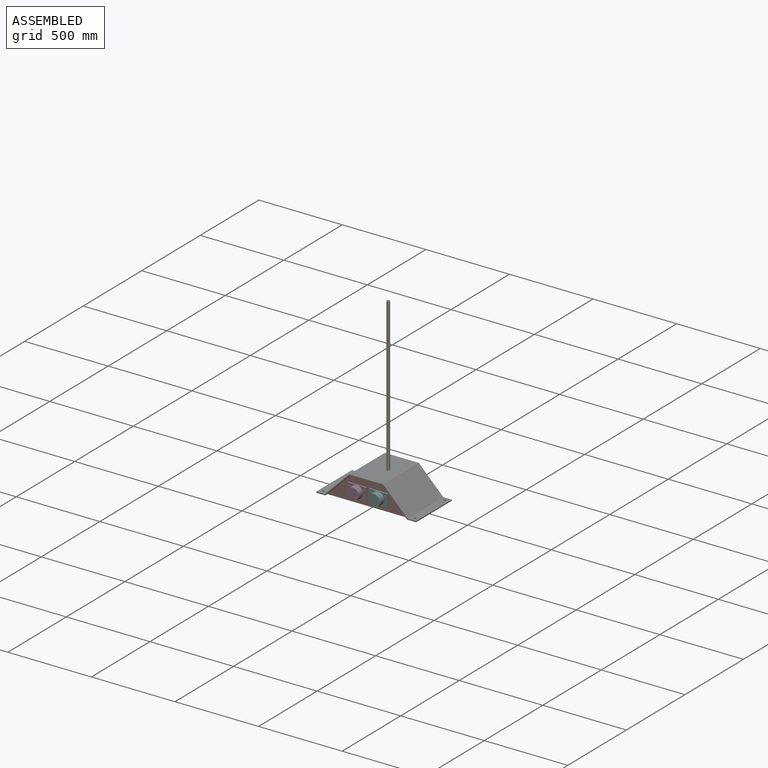
[diagram: assembled view]
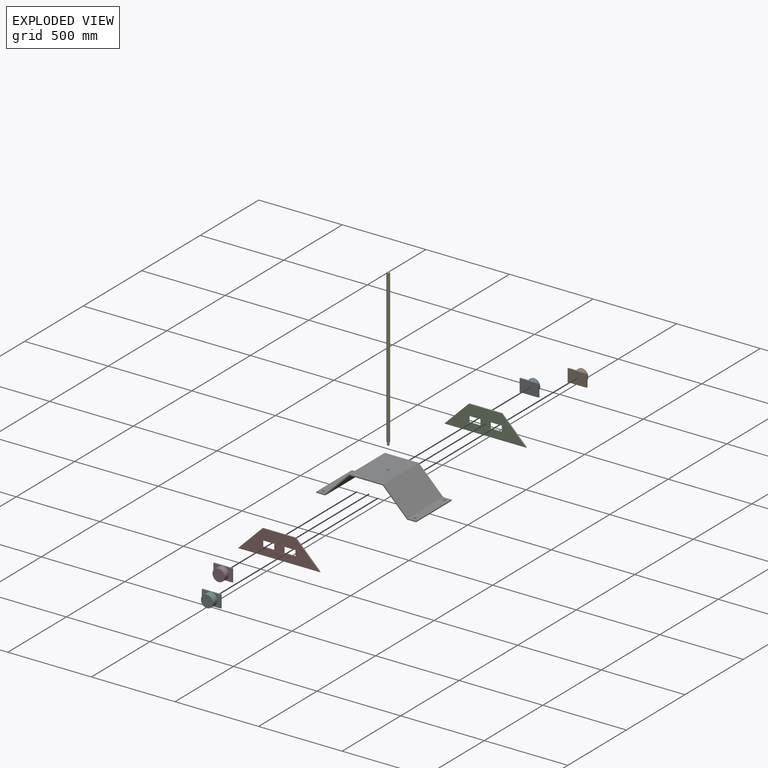
[diagram: exploded view]
GUIDED TOUR — MATED ASSEMBLY (Onshape document bef952115ae4e4e3dbd7dc41, AutoMate assembly bef952115ae4e4e3dbd7dc41_7c70753923f27d5a28662332_4866c18e5e2b8e146bc6869d_default)

This assembly has 8 components, labeled P0..P7 below (a component is one placed occurrence of a part; the same part can appear more than once), held together by 9 mates. A mate is a constraint between two components; its type names the relative motion it leaves free:
  FASTENED — locks the two components together rigidly (no relative motion),
  PLANAR — leaves sliding in the plane through the listed point (normal = the listed direction) and rotation about that normal free.
Axis/direction vectors are unit vectors and 'through' points are millimeter coordinates, both in the assembly's world frame.

MATES
  1. FASTENED "Fastened 4": P2 <-> P1, direction (0.000, 1.000, 0.000) through (22.22, 133.35, -65.02) mm
  2. FASTENED "Fastened 1": P5 <-> P7, direction (0.000, 1.000, 0.000) through (104.78, -133.35, -65.02) mm
  3. FASTENED "Fastened 3": P0 <-> P2, direction (0.000, -1.000, 0.000) through (-104.77, 133.35, -65.02) mm
  4. FASTENED "Fastened 2": P7 <-> P3, direction (0.000, -1.000, 0.000) through (-22.23, -133.35, -65.02) mm
  5. PLANAR "Planar 5": P4 <-> P6, direction (0.000, 0.000, -1.000) through (25.40, 0.00, 0.00) mm
  6. PLANAR "Planar 3": P2 <-> P6, direction (0.000, 0.000, 1.000) through (0.00, 130.17, -6.35) mm
  7. PLANAR "Planar 4": P2 <-> P6, direction (0.000, 1.000, 0.000) through (0.00, 133.35, -89.80) mm
  8. PLANAR "Planar 2": P7 <-> P6, direction (0.000, -1.000, 0.000) through (0.00, -133.35, -89.80) mm
  9. PLANAR "Planar 1": P7 <-> P6, direction (0.000, 0.000, 1.000) through (0.00, -130.17, -6.35) mm

ASSEMBLY ORDER
  1. P6 — the base component [order verified]
  2. P2 [order verified]
  3. P7 [order verified]
  4. P0 [order verified]
  5. P1 [order verified]
  6. P3 [order verified]
  7. P5 [order verified]
  8. P4 [order verified]
Order-tag legend:
  [order verified] — this step's position reverses a verified removal order: the component was checked to insert without passing through the ones already placed.

Of the 8 components, 6 carry the full construction recipe — the FeatureScript program that regenerates the part's solid from scratch; the rest are supplied as boundary geometry only.
Each toured component is shown spotlighted twice — in the assembled view, then in the exploded view, where a leader line traces a displaced component back to its assembled socket (saturated green if recipe-attached, orange if geometry-only; every other component desaturated gray) — followed by its recipe or geometry summary and the mates that hold it.
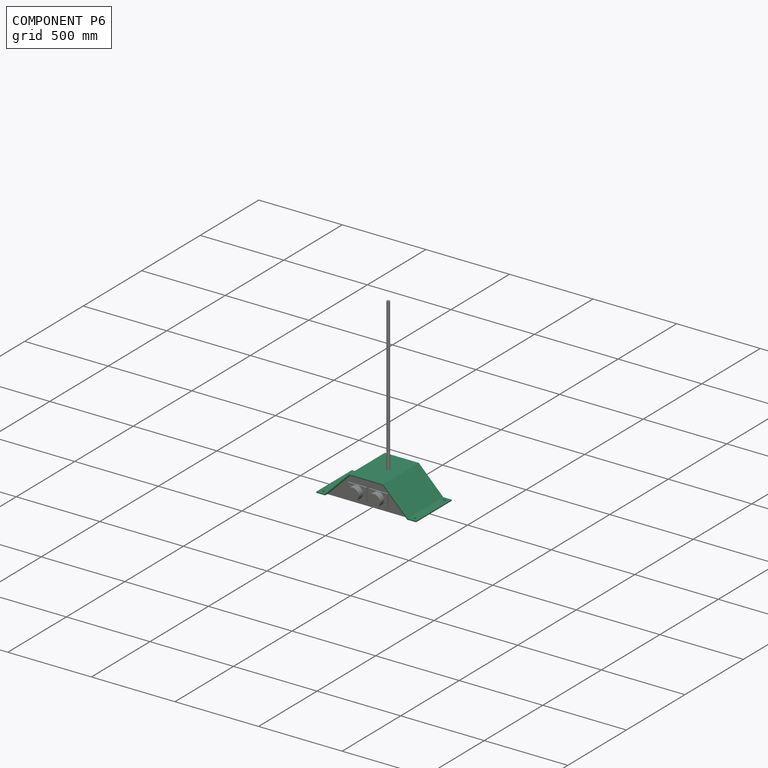
[diagram: component P6 — assembled]
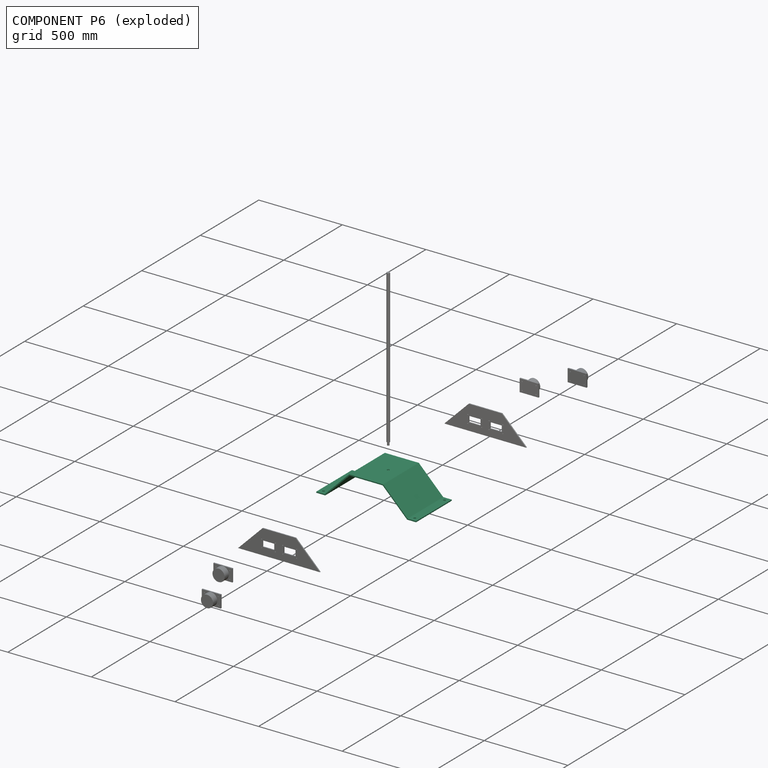
[diagram: component P6 — exploded]
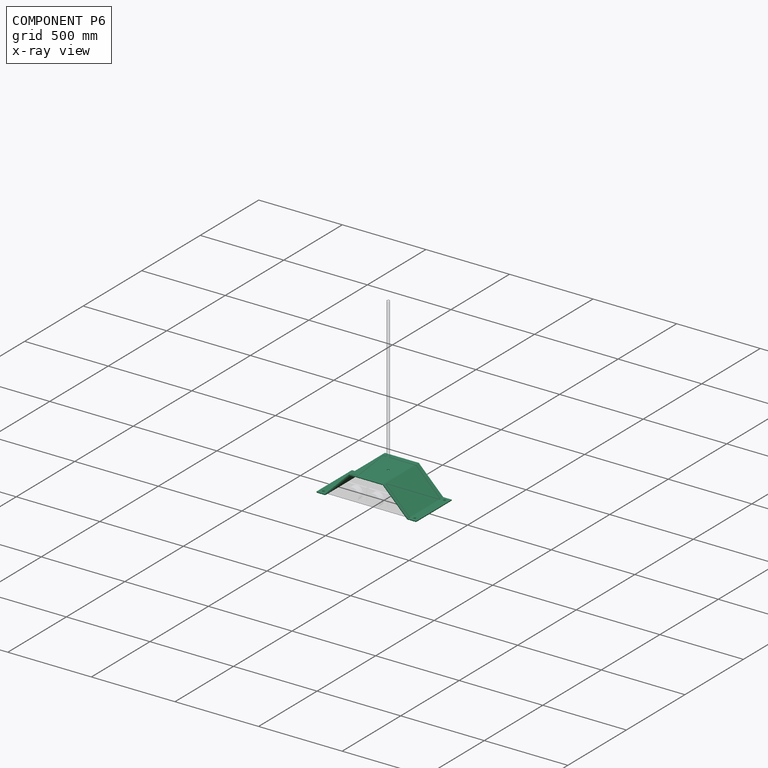
[diagram: component P6 — x-ray view]
COMPONENT P6 — recipe-attached (CADFS 00173243, mesh-verified: the recipe's output STEP matches this component's geometry to below the mesh-comparison resolution (tessellation chordal tolerance ~1.03 mm)).
Held by: PLANAR mate "Planar 5" to P4; PLANAR mate "Planar 3" to P2; PLANAR mate "Planar 4" to P2; PLANAR mate "Planar 2" to P7; PLANAR mate "Planar 1" to P7.
Construction recipe (FeatureScript — the CAD program that rebuilds this solid; sketch coordinates are in the units given by the * unit suffixes, e.g. mm):

FeatureScript 1511;
import(path : "onshape/std/geometry.fs", version : "1511.0");
import(path : "onshape/std/common.fs", version : "1511.0");
const mm = millimeter;
const VERTEX = EntityType.VERTEX;
const EDGE = EntityType.EDGE;
const FACE = EntityType.FACE;
const BODY = EntityType.BODY;
function v(x, y){return vector(x, y);}
function OD(order){return orderDisambiguation(order);}
function OSD(set){return originalSetDisambiguation(set);}
function TD(topology){return topologyDisambiguation(topology);}
function TDD(query){return trueDependencyDisambiguation(query);}
function sQuery(a, b, c) {return sketchEntityQuery(a, b, c);}

annotation { "Feature Type Name" : "Feature", "Feature Type Description" : "" }
export const myFeature = defineFeature(function(context is Context, id is Id, definition is map)
    precondition{}
    {
        {
            var Q0;
            Q0=qCreatedBy(makeId("Front.planeOp"),FACE);
            var sketch = newSketch(context, id + "F0", { "sketchPlane" : qUnion([Q0])});
            skLineSegment(sketch, "E0", {"start": v(-101.6, 0) * mm, "end": v(101.6, 0) * mm});
            skLineSegment(sketch, "E1", {"start": v(101.6, 0) * mm, "end": v(247.65, -146.05) * mm});
            skLineSegment(sketch, "E2", {"start": v(247.65, -146.05) * mm, "end": v(298.45, -146.05) * mm});
            skLineSegment(sketch, "E3", {"start": v(298.45, -146.05) * mm, "end": v(298.45, -152.4) * mm});
            skLineSegment(sketch, "E4", {"start": v(298.45, -152.4) * mm, "end": v(245.02, -152.4) * mm});
            skLineSegment(sketch, "E5", {"start": v(245.02, -152.4) * mm, "end": v(98.97, -6.35) * mm});
            skLineSegment(sketch, "E6", {"start": v(98.97, -6.35) * mm, "end": v(-98.97, -6.35) * mm});
            skLineSegment(sketch, "E7", {"start": v(-98.97, -6.35) * mm, "end": v(-245.02, -152.4) * mm});
            skLineSegment(sketch, "E8", {"start": v(-245.02, -152.4) * mm, "end": v(-298.45, -152.4) * mm});
            skLineSegment(sketch, "E9", {"start": v(-298.45, -152.4) * mm, "end": v(-298.45, -146.05) * mm});
            skLineSegment(sketch, "E10", {"start": v(-298.45, -146.05) * mm, "end": v(-247.65, -146.05) * mm});
            skLineSegment(sketch, "E11", {"start": v(-247.65, -146.05) * mm, "end": v(-101.6, 0) * mm});
            skSolve(sketch);
        }
        {
            var Q0;
            Q0 = qSketchRegion(id + "F0", true);
            extrude(context, id + "F1", {"entities" : qUnion([Q0]), "endBound" : BoundingType.SYMMETRIC, "depth" : 304.8 * mm});
        }
        {
            var Q0;
            Q0=makeQuery(id+"F1.opExtrude","SWEPT_FACE",FACE,{"disambiguationData":[OSD([sQuery(id+"F0.wireOp",EDGE,"E10")])]});
            var sketch = newSketch(context, id + "F2", { "sketchPlane" : qUnion([Q0])});
            skCircle(sketch, "E12", {"center": v(-273.05, -127) * mm, "radius": 7.14 * mm});
            skLineSegment(sketch, "E13", {"start": v(0, 153.5) * mm, "end": v(0, -152.33) * mm});
            skLineSegment(sketch, "E14", {"start": v(-298.45, 0) * mm, "end": v(297.7, 0) * mm});
            skPoint(sketch, "E14.endSnap0", {"position": v(-298.45, 0) * mm});
            skCircle(sketch, "E15.MirrorC", {"center": v(-273.05, 127) * mm, "radius": 7.14 * mm});
            skCircle(sketch, "E16.MirrorC", {"center": v(273.05, -127) * mm, "radius": 7.14 * mm});
            skCircle(sketch, "E17.MirrorC", {"center": v(273.05, 127) * mm, "radius": 7.14 * mm});
            skSolve(sketch);
        }
        {
            var Q0;
            Q0 = qSketchRegion(id + "F2", true);
            extrude(context, id + "F3", {"entities" : qUnion([Q0]), "operationType" : NewBodyOperationType.REMOVE, "endBound" : BoundingType.THROUGH_ALL, "oppositeDirection" : true, "depth" : 25.4 * mm});
        }
        {
            var Q0;
            Q0=makeQuery(id+"F1.opExtrude","SWEPT_FACE",FACE,{"disambiguationData":[OSD([sQuery(id+"F0.wireOp",EDGE,"E0")])]});
            var sketch = newSketch(context, id + "F4", { "sketchPlane" : qUnion([Q0])});
            skCircle(sketch, "E18", {"center": v(25.4, 0) * mm, "radius": 7.14 * mm});
            skSolve(sketch);
        }
        {
            var Q0;
            Q0 = qSketchRegion(id + "F4", true);
            extrude(context, id + "F5", {"entities" : qUnion([Q0]), "operationType" : NewBodyOperationType.REMOVE, "endBound" : BoundingType.THROUGH_ALL, "oppositeDirection" : true, "depth" : 25.4 * mm});
        }
    });
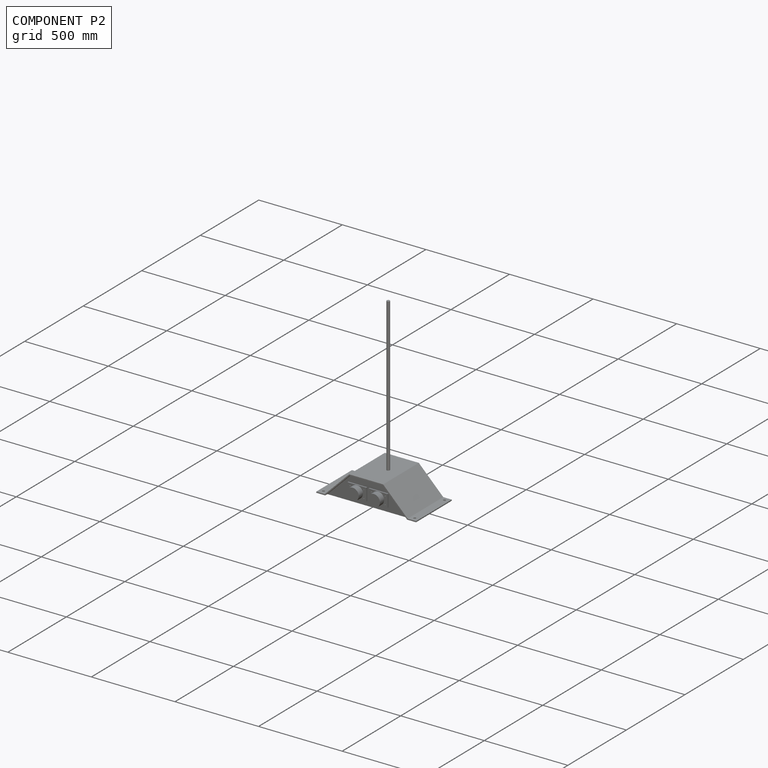
[diagram: component P2 — assembled]
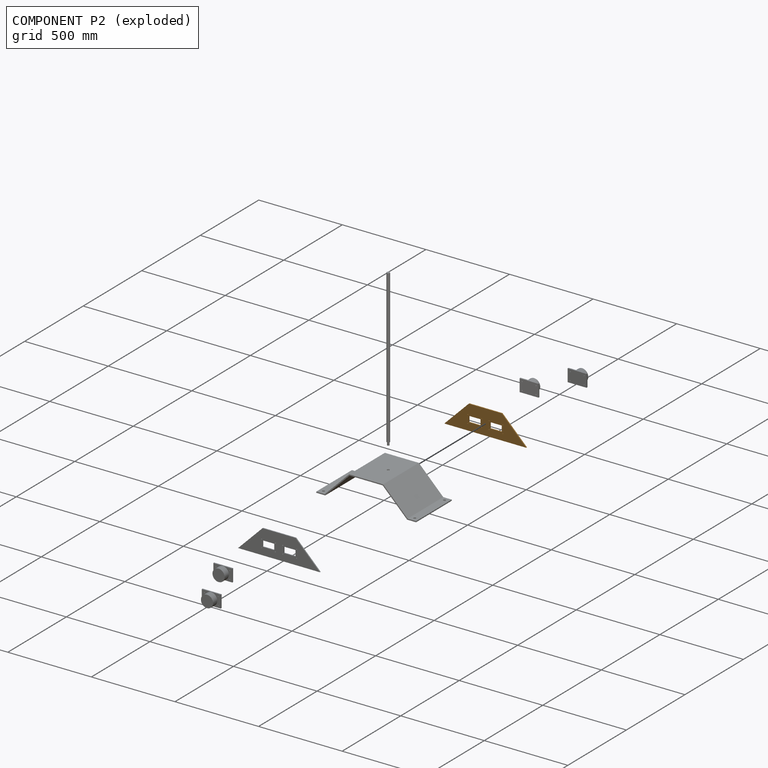
[diagram: component P2 — exploded]
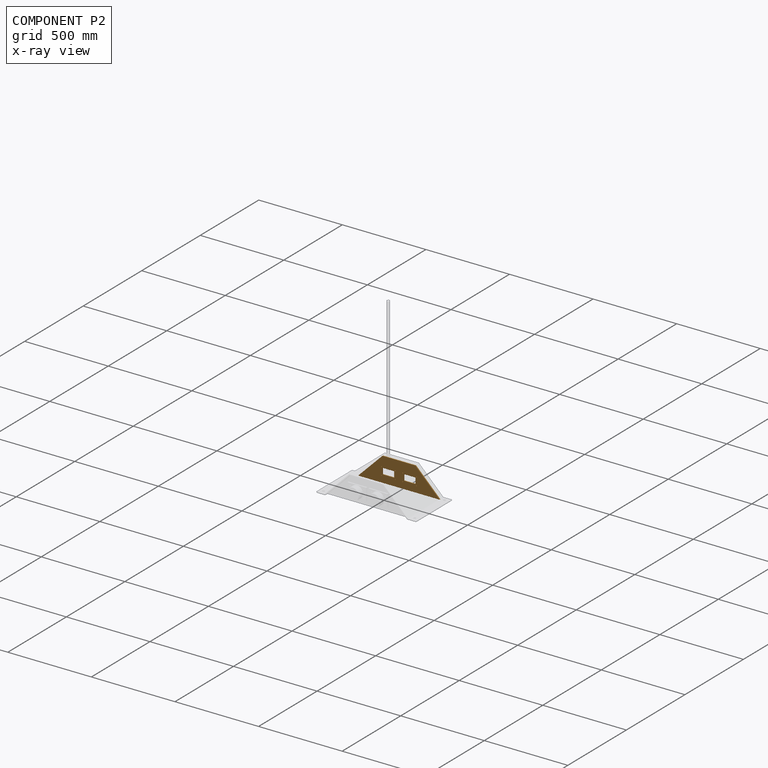
[diagram: component P2 — x-ray view]
COMPONENT P2 — geometry summary (no construction recipe available for this part):
  bounding box: 490.0 x 146.1 x 6.4 mm
  B-rep topology: 1 solid, 22 faces, 136 edges
  volume: 286939 mm^3 (63% of its bounding box)
  symmetry: 2-fold rotationally symmetric about the z axis; mirror-symmetric across its x mid-plane, y mid-plane
Held by: FASTENED mate "Fastened 4" to P1; FASTENED mate "Fastened 3" to P0; PLANAR mate "Planar 3" to P6; PLANAR mate "Planar 4" to P6.
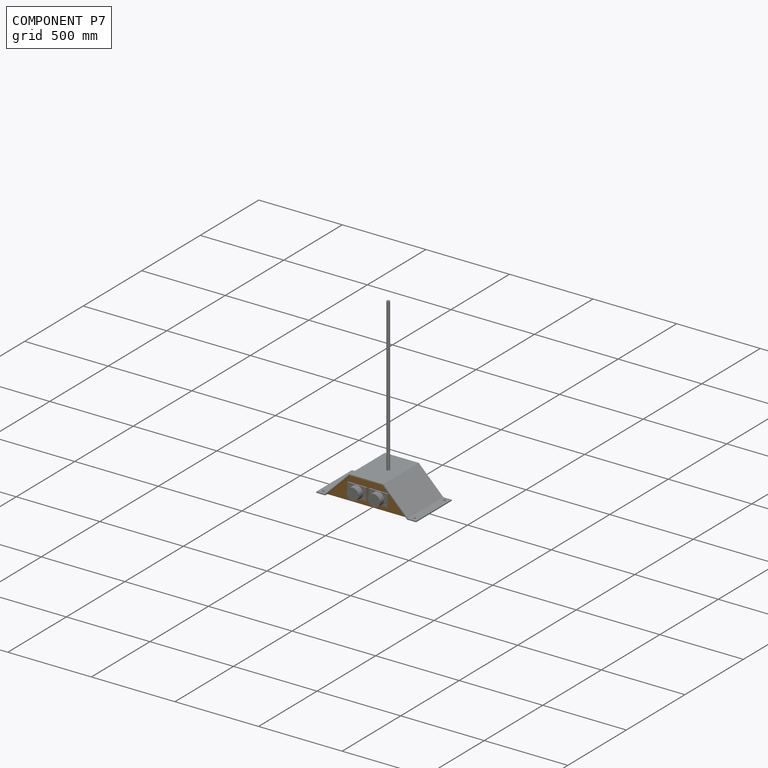
[diagram: component P7 — assembled]
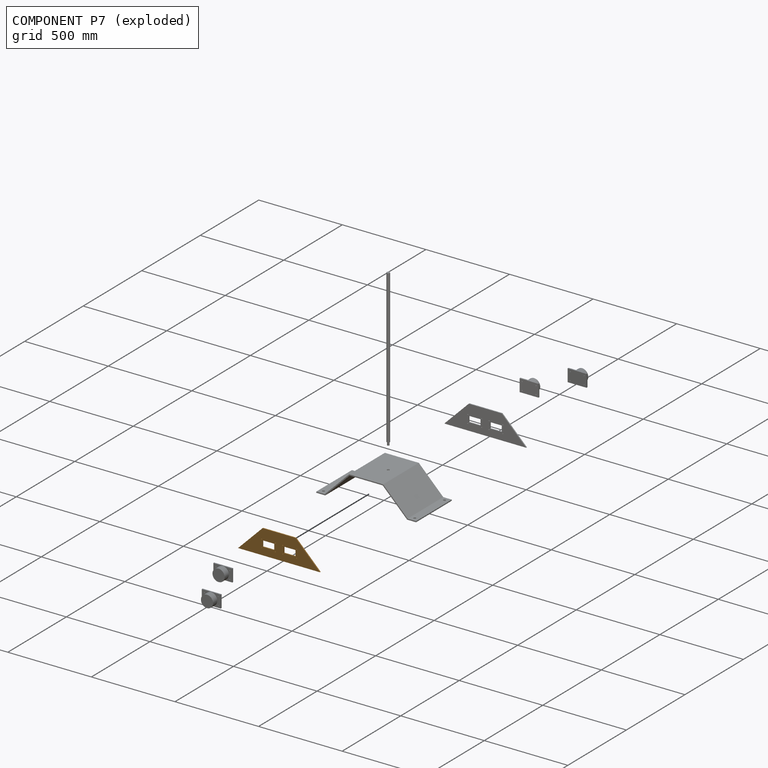
[diagram: component P7 — exploded]
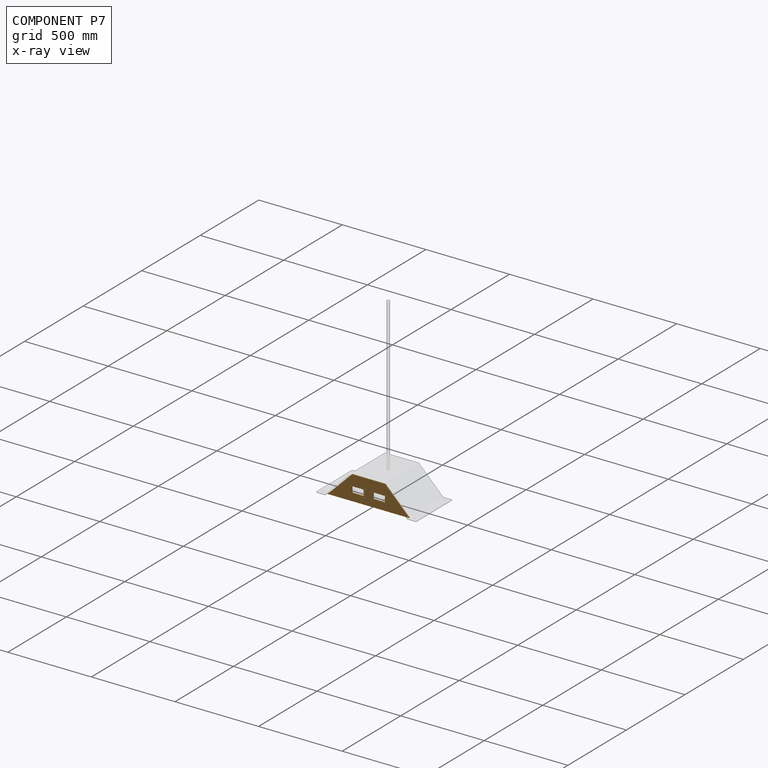
[diagram: component P7 — x-ray view]
COMPONENT P7 — geometry summary (no construction recipe available for this part):
  bounding box: 490.0 x 146.1 x 6.4 mm
  B-rep topology: 1 solid, 22 faces, 136 edges
  volume: 286939 mm^3 (63% of its bounding box)
  symmetry: 2-fold rotationally symmetric about the z axis; mirror-symmetric across its x mid-plane, y mid-plane
Held by: FASTENED mate "Fastened 1" to P5; FASTENED mate "Fastened 2" to P3; PLANAR mate "Planar 2" to P6; PLANAR mate "Planar 1" to P6.
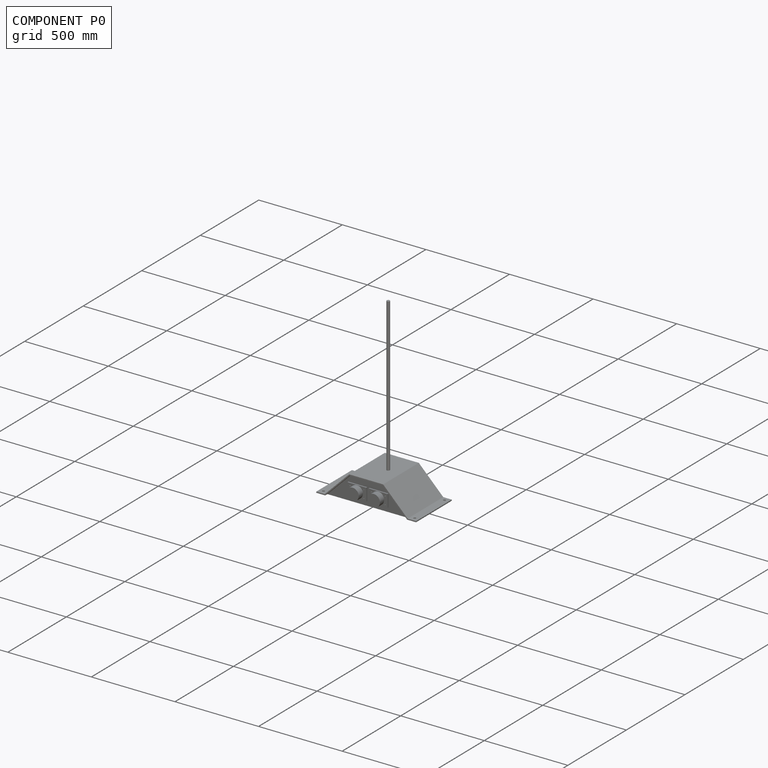
[diagram: component P0 — assembled]
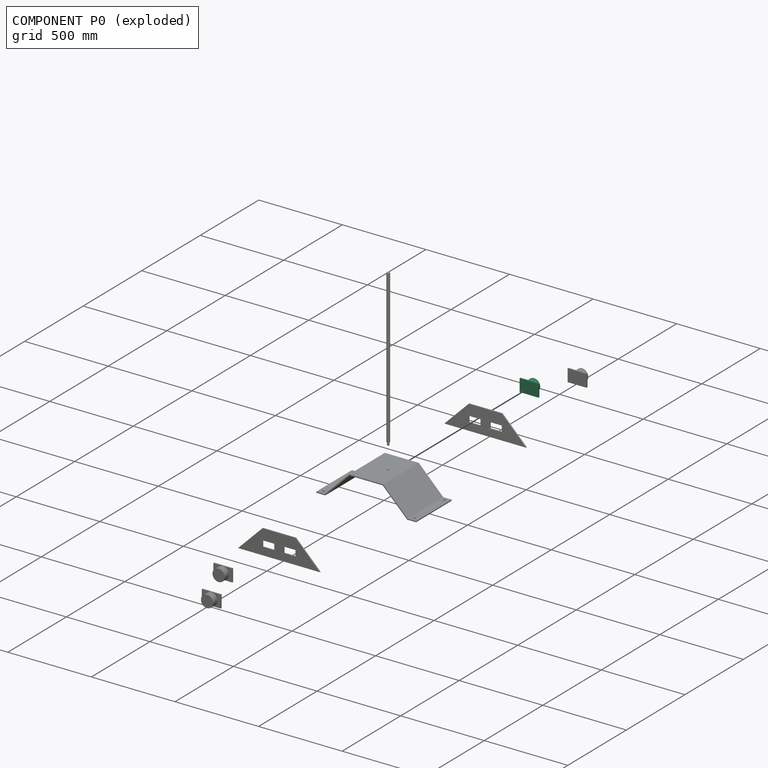
[diagram: component P0 — exploded]
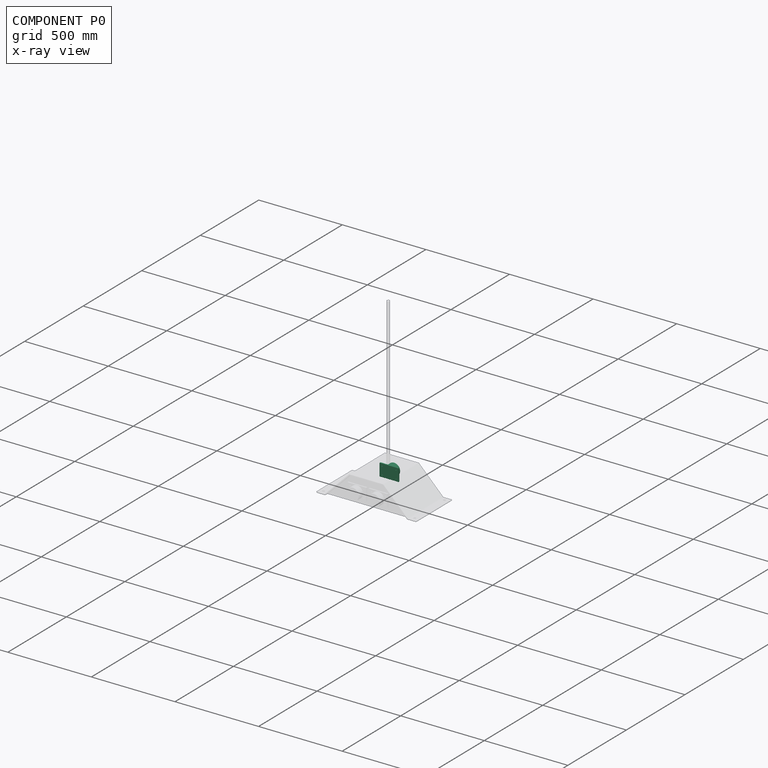
[diagram: component P0 — x-ray view]
COMPONENT P0 — recipe-attached (CADFS 00173245, mesh-verified: the recipe's output STEP matches this component's geometry to below the mesh-comparison resolution (tessellation chordal tolerance ~0.214 mm)).
Held by: FASTENED mate "Fastened 3" to P2.
Construction recipe (FeatureScript — the CAD program that rebuilds this solid; sketch coordinates are in the units given by the * unit suffixes, e.g. mm):

FeatureScript 1511;
import(path : "onshape/std/geometry.fs", version : "1511.0");
import(path : "onshape/std/common.fs", version : "1511.0");
const mm = millimeter;
const VERTEX = EntityType.VERTEX;
const EDGE = EntityType.EDGE;
const FACE = EntityType.FACE;
const BODY = EntityType.BODY;
function v(x, y){return vector(x, y);}
function OD(order){return orderDisambiguation(order);}
function OSD(set){return originalSetDisambiguation(set);}
function TD(topology){return topologyDisambiguation(topology);}
function TDD(query){return trueDependencyDisambiguation(query);}
function sQuery(a, b, c) {return sketchEntityQuery(a, b, c);}

annotation { "Feature Type Name" : "Feature", "Feature Type Description" : "" }
export const myFeature = defineFeature(function(context is Context, id is Id, definition is map)
    precondition{}
    {
        {
            var Q0;
            Q0=qCreatedBy(makeId("Front.planeOp"),FACE);
            var sketch = newSketch(context, id + "F0", { "sketchPlane" : qUnion([Q0])});
            skLineSegment(sketch, "E0.bottom", {"start": v(-37.46, 56.64) * mm, "end": v(37.47, 56.64) * mm});
            skLineSegment(sketch, "E0.top", {"start": v(-37.47, -56.64) * mm, "end": v(37.46, -56.64) * mm});
            skLineSegment(sketch, "E0.left", {"start": v(-37.46, 56.64) * mm, "end": v(-37.47, -56.64) * mm});
            skLineSegment(sketch, "E0.right", {"start": v(37.47, 56.64) * mm, "end": v(37.46, -56.64) * mm});
            skPoint(sketch, "E0.middle", {"position": v(0, 0) * mm});
            skSolve(sketch);
        }
        {
            var Q0;
            Q0 = qSketchRegion(id + "F0", true);
            extrude(context, id + "F1", {"entities" : qUnion([Q0]), "depth" : 7.62 * mm});
        }
        {
            var Q0;
            Q0=makeQuery(id+"F1.opExtrude","CAP_FACE",FACE,{"disambiguationData":[OSD([sQuery(id+"F0.wireOp",EDGE,"E0.bottom"),sQuery(id+"F0.wireOp",EDGE,"E0.top"),sQuery(id+"F0.wireOp",EDGE,"E0.left"),sQuery(id+"F0.wireOp",EDGE,"E0.right")])],"isStart":false});
            var sketch = newSketch(context, id + "F2", { "sketchPlane" : qUnion([Q0])});
            skLineSegment(sketch, "E1", {"start": v(0, 56.64) * mm, "end": v(0, -56.64) * mm});
            skLineSegment(sketch, "E2", {"start": v(-37.47, 0) * mm, "end": v(37.46, 0) * mm});
            skCircle(sketch, "E3", {"center": v(23.88, 41.27) * mm, "radius": 2.38 * mm});
            skCircle(sketch, "E4", {"center": v(-23.88, 41.27) * mm, "radius": 2.38 * mm});
            skCircle(sketch, "E5", {"center": v(-23.88, -41.28) * mm, "radius": 2.38 * mm});
            skCircle(sketch, "E6", {"center": v(23.88, -41.28) * mm, "radius": 2.38 * mm});
            skSolve(sketch);
        }
        {
            var Q0;
            Q0 = qSketchRegion(id + "F2", true);
            extrude(context, id + "F3", {"entities" : qUnion([Q0]), "operationType" : NewBodyOperationType.REMOVE, "endBound" : BoundingType.THROUGH_ALL, "oppositeDirection" : true, "depth" : 25.4 * mm});
        }
        {
            var Q0;
            Q0=makeQuery(id+"F1.opExtrude","CAP_FACE",FACE,{"disambiguationData":[OSD([sQuery(id+"F0.wireOp",EDGE,"E0.bottom"),sQuery(id+"F0.wireOp",EDGE,"E0.top"),sQuery(id+"F0.wireOp",EDGE,"E0.left"),sQuery(id+"F0.wireOp",EDGE,"E0.right")])],"isStart":false});
            var sketch = newSketch(context, id + "F4", { "sketchPlane" : qUnion([Q0])});
            skCircle(sketch, "E7", {"center": v(0, 0) * mm, "radius": 36.32 * mm});
            skSolve(sketch);
        }
        {
            var Q0;
            Q0 = qSketchRegion(id + "F4", true);
            extrude(context, id + "F5", {"entities" : qUnion([Q0]), "operationType" : NewBodyOperationType.ADD, "depth" : 36.32 * mm});
        }
    });
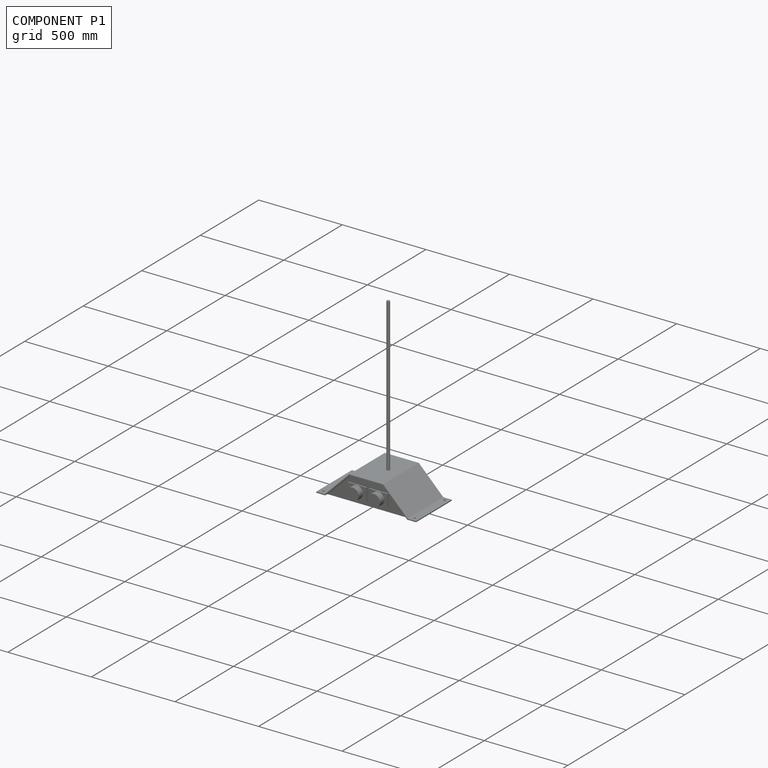
[diagram: component P1 — assembled]
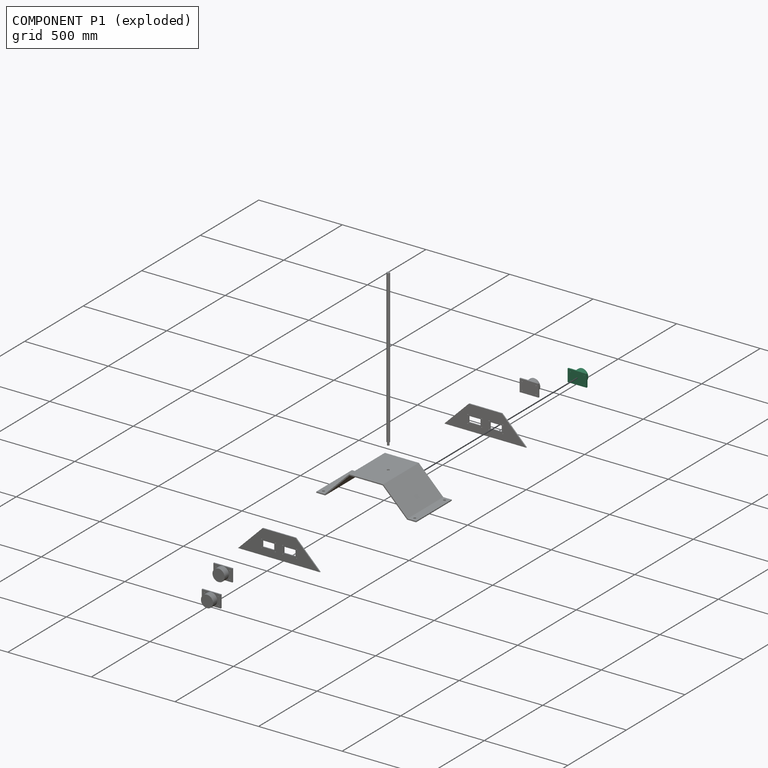
[diagram: component P1 — exploded]
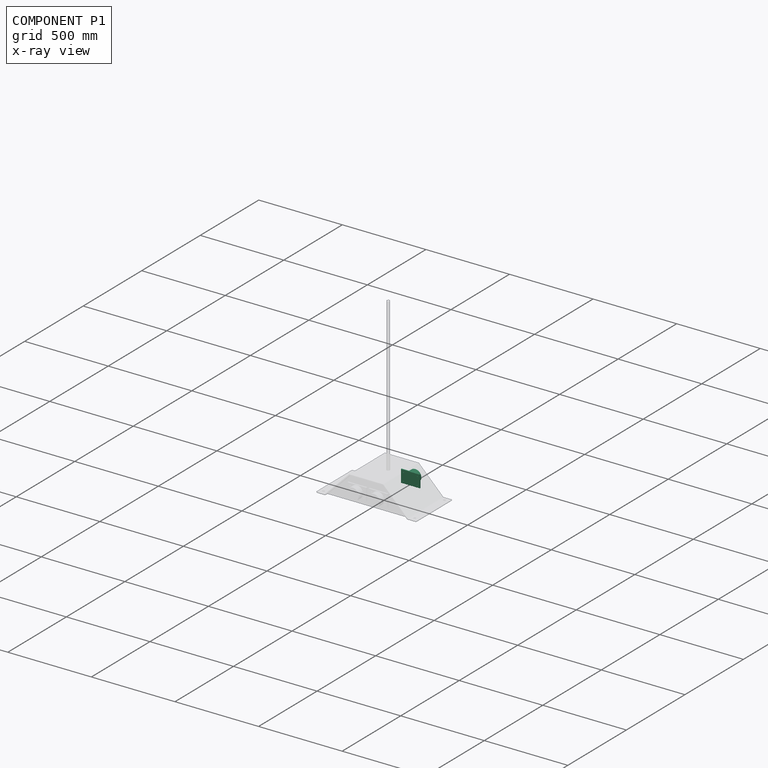
[diagram: component P1 — x-ray view]
COMPONENT P1 — same part as P0 (CADFS 00173245); its construction recipe is shown at P0.
Held by: FASTENED mate "Fastened 4" to P2.
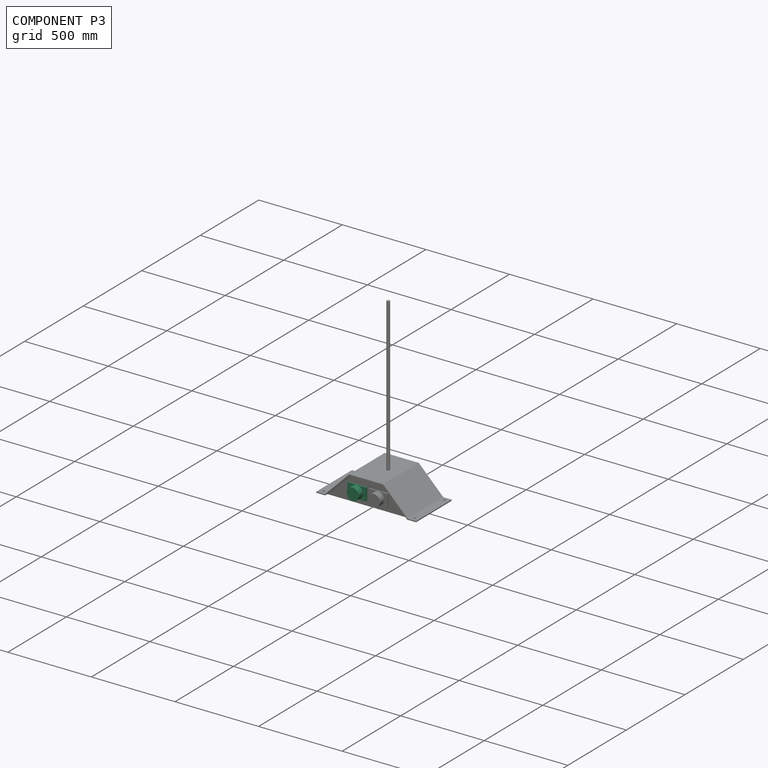
[diagram: component P3 — assembled]
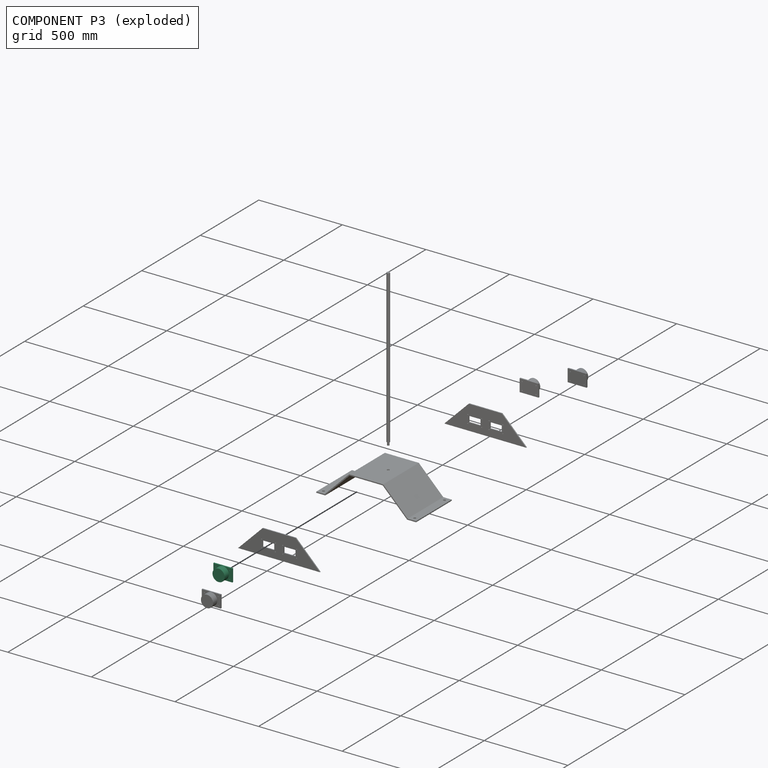
[diagram: component P3 — exploded]
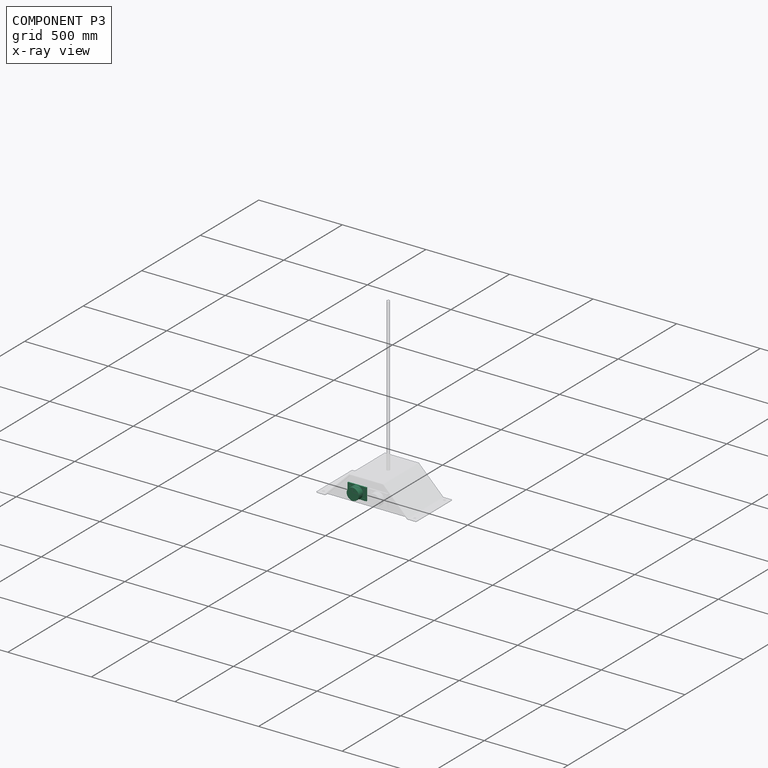
[diagram: component P3 — x-ray view]
COMPONENT P3 — same part as P0 (CADFS 00173245); its construction recipe is shown at P0.
Held by: FASTENED mate "Fastened 2" to P7.
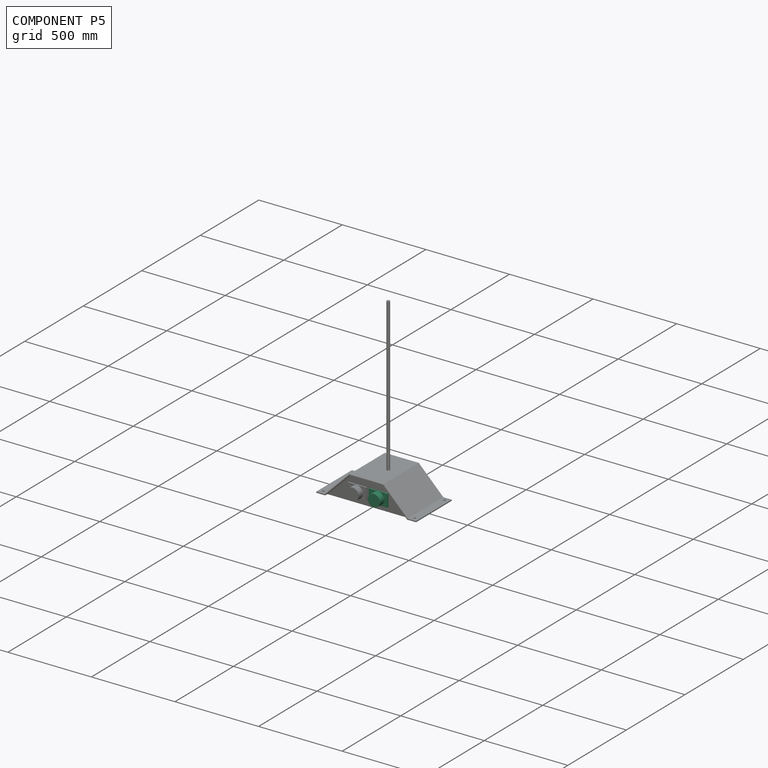
[diagram: component P5 — assembled]
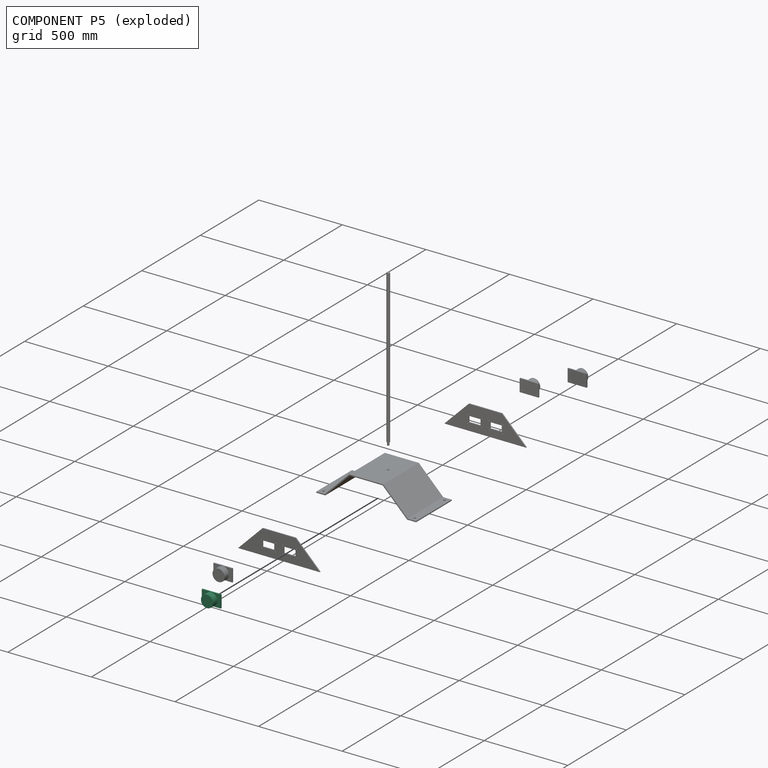
[diagram: component P5 — exploded]
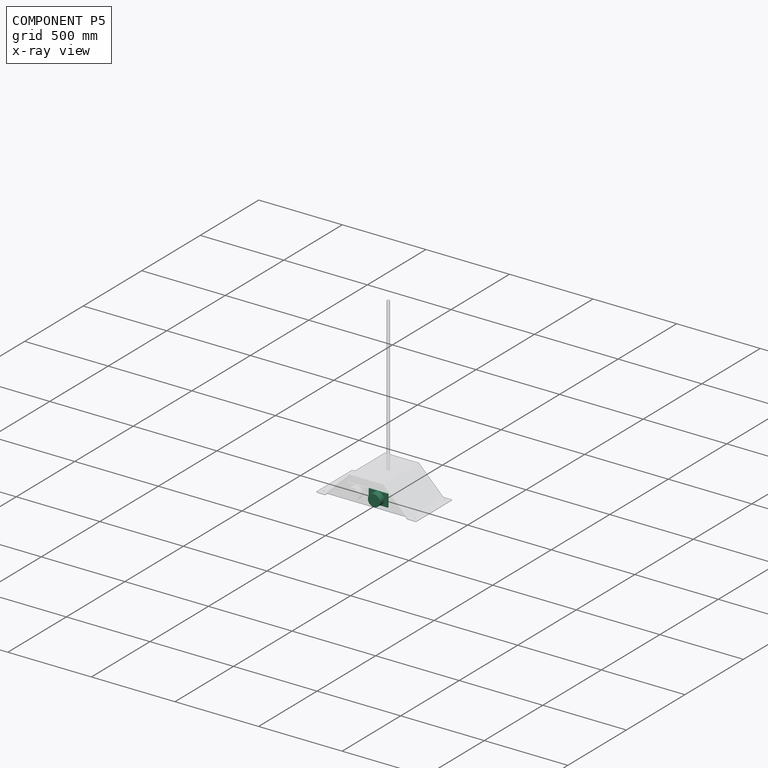
[diagram: component P5 — x-ray view]
COMPONENT P5 — same part as P0 (CADFS 00173245); its construction recipe is shown at P0.
Held by: FASTENED mate "Fastened 1" to P7.
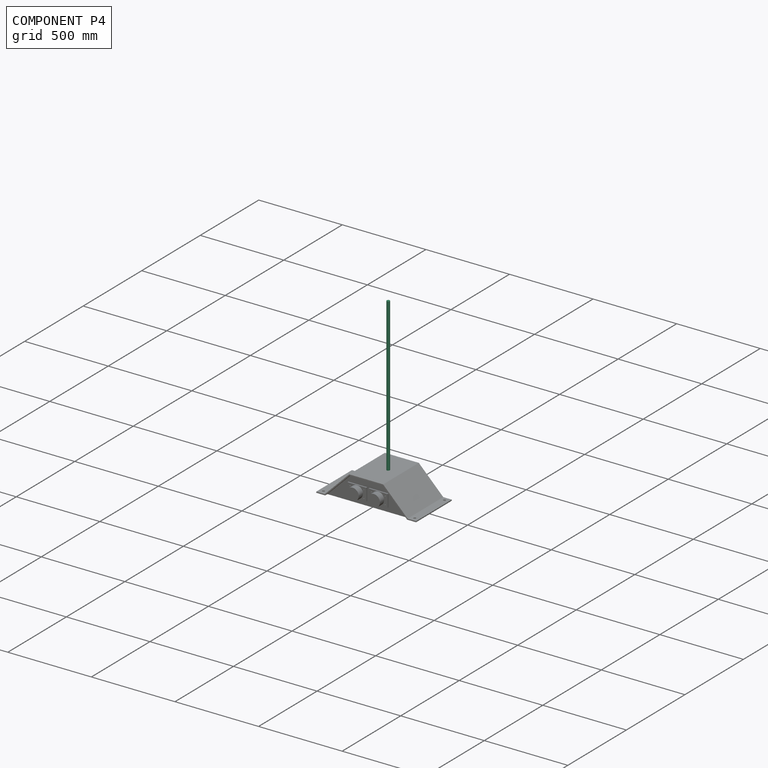
[diagram: component P4 — assembled]
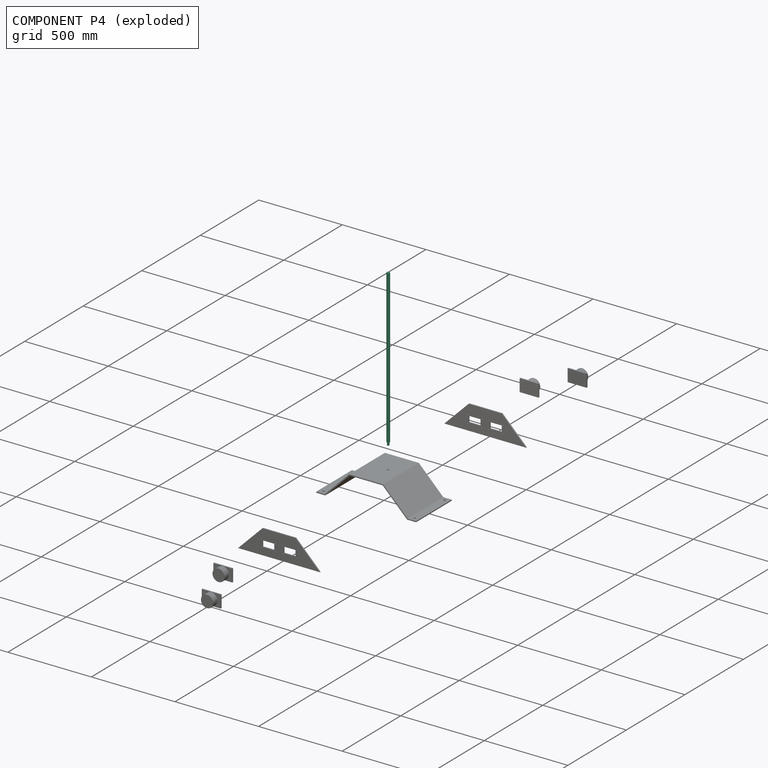
[diagram: component P4 — exploded]
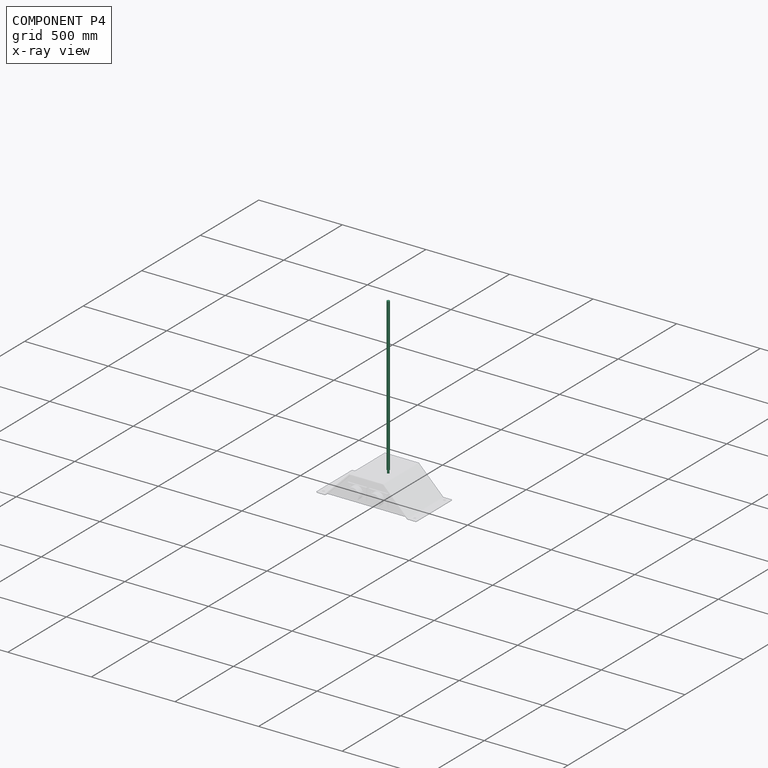
[diagram: component P4 — x-ray view]
COMPONENT P4 — recipe-attached (CADFS 00173246, mesh-verified: the recipe's output STEP matches this component's geometry to below the mesh-comparison resolution (tessellation chordal tolerance ~1.4 mm)).
Held by: PLANAR mate "Planar 5" to P6.
Construction recipe (FeatureScript — the CAD program that rebuilds this solid; sketch coordinates are in the units given by the * unit suffixes, e.g. mm):

FeatureScript 1511;
import(path : "onshape/std/geometry.fs", version : "1511.0");
import(path : "onshape/std/common.fs", version : "1511.0");
const mm = millimeter;
const VERTEX = EntityType.VERTEX;
const EDGE = EntityType.EDGE;
const FACE = EntityType.FACE;
const BODY = EntityType.BODY;
function v(x, y){return vector(x, y);}
function OD(order){return orderDisambiguation(order);}
function OSD(set){return originalSetDisambiguation(set);}
function TD(topology){return topologyDisambiguation(topology);}
function TDD(query){return trueDependencyDisambiguation(query);}
function sQuery(a, b, c) {return sketchEntityQuery(a, b, c);}

annotation { "Feature Type Name" : "Feature", "Feature Type Description" : "" }
export const myFeature = defineFeature(function(context is Context, id is Id, definition is map)
    precondition{}
    {
        {
            var Q0;
            Q0=qCreatedBy(makeId("Top.planeOp"),FACE);
            var sketch = newSketch(context, id + "F0", { "sketchPlane" : qUnion([Q0])});
            skCircle(sketch, "E0", {"center": v(0, 0) * mm, "radius": 9.53 * mm});
            skSolve(sketch);
        }
        {
            var Q0;
            Q0 = qSketchRegion(id + "F0", true);
            extrude(context, id + "F1", {"entities" : qUnion([Q0]), "depth" : 914.4 * mm});
        }
        {
            var Q0;
            Q0=makeQuery(id+"F1.opExtrude","CAP_FACE",FACE,{"disambiguationData":[OSD([sQuery(id+"F0.wireOp",EDGE,"E0")])],"isStart":true});
            var sketch = newSketch(context, id + "F2", { "sketchPlane" : qUnion([Q0])});
            skCircle(sketch, "E1", {"center": v(0, 0) * mm, "radius": 6.35 * mm});
            skSolve(sketch);
        }
        {
            var Q0;
            Q0 = qSketchRegion(id + "F2", true);
            extrude(context, id + "F3", {"entities" : qUnion([Q0]), "operationType" : NewBodyOperationType.ADD, "depth" : 19.05 * mm});
        }
    });
PROVENANCE & LICENSES
Assembly (occurrences, transforms, mates, per-part STEP geometry): AutoMate dataset, Zenodo record 7776208, CC0.
Construction recipes: CADFS (HuggingFace VladPyatov/CADFS, CC-BY-4.0, layered over the ABC dataset), FeatureScript reconstruction programs keyed by ABC model id.
Join: ABC meta listings map ABC model id -> Onshape documentId; within a shared document, parts are matched by geometric signature (bounding-box dims + volume at 0.1% relative tolerance, exact B-rep face/solid counts).
Verification: 6 of this assembly's 8 components carry a recipe attachment, and every attachment is mesh-verified: the CADFS STEP and the AutoMate member STEP were compared as meshes in their shared local frame (symmetric sampled-point-to-mesh distance); worst across the 6 attachments: below the mesh-comparison resolution (tessellation chordal tolerance ~1.4 mm) on a 934 mm part.
Renders: orthographic iso camera (az 35 / el 25); the floor grid conveys scale (grid pitch printed in each image; no ruler). In the exploded view each component is displaced by its stored offset vector: the offsets alone carry the explosion direction (mate normal/axis signs are not orientation cues and do not encode it), and separation distances are assigned per mate-chain, not proportionally to assembly-order depth.
